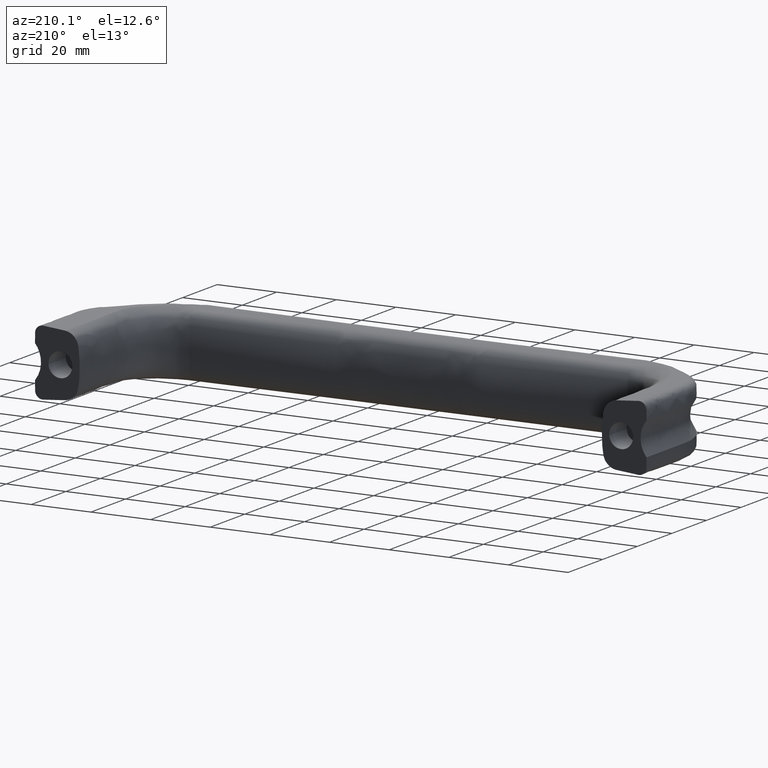
[diagram: clean part render]
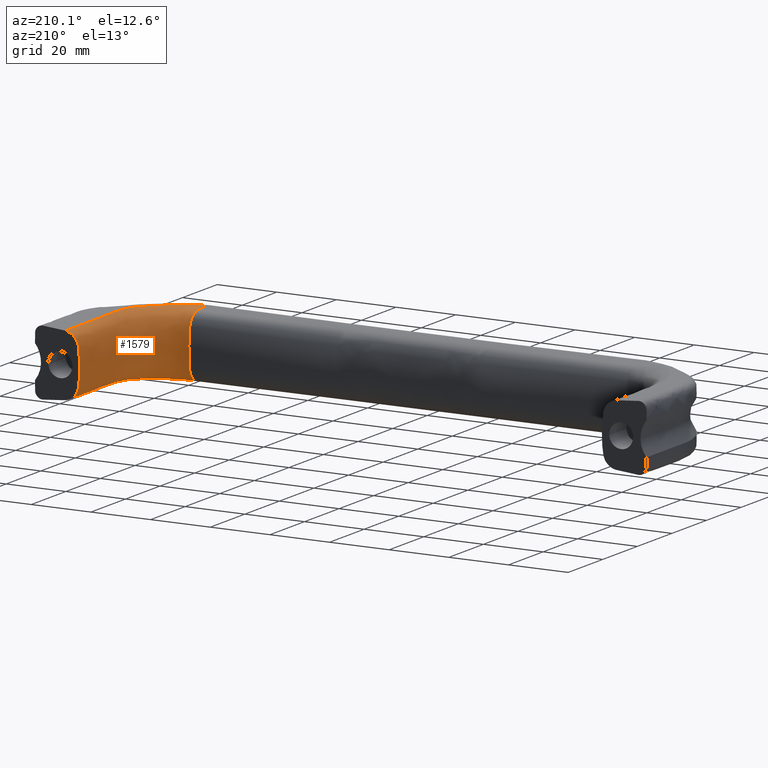
[diagram: same view with one face highlighted and labeled with its STEP entity id]
A machine part, auxiliary view. The second image highlights one B-rep face of the part: STEP entity #1579.
In plain terms, the highlighted face is a freeform B-spline surface patch.
Its self-contained STEP definition (entity closure, byte-faithful):
#846=CARTESIAN_POINT('',(72.299835684796108,2.508429898845060,-11.0));
#847=VERTEX_POINT('',#846);
#1008=CARTESIAN_POINT('',(98.737299259534794,50.000000000000703,-10.899077593641859));
#1009=VERTEX_POINT('',#1008);
#1027=CARTESIAN_POINT('',(98.737299259534794,50.000000000000703,-10.899077593641859));
#1028=CARTESIAN_POINT('',(98.737299259534694,42.666666666667403,-10.899077593641859));
#1029=CARTESIAN_POINT('',(98.737299259534794,35.333333333331993,-10.899077593641859));
#1030=CARTESIAN_POINT('',(98.737299259534794,27.999999999998700,-10.899077593641859));
#1031=CARTESIAN_POINT('',(98.737299259534410,21.103288754160051,-10.899077593641859));
#1032=CARTESIAN_POINT('',(96.025366524836301,14.424238631221000,-10.949782104332860));
#1033=CARTESIAN_POINT('',(91.011657774995598,9.636922482495381,-10.949782104332860));
#1034=CARTESIAN_POINT('',(86.046065967208094,4.895550568908179,-10.949782104332860));
#1035=CARTESIAN_POINT('',(79.316100290242701,2.212677621676260,-11.000243307512040));
#1036=CARTESIAN_POINT('',(72.366631053435100,2.505343412858650,-11.0));
#1037=CARTESIAN_POINT('',(72.299835684796108,2.508429898845060,-11.0));
#1038=B_SPLINE_CURVE_WITH_KNOTS('',3,(#1027,#1028,#1029,#1030,#1031,#1032,#1033,#1034,#1035,#1036,#1037),.UNSPECIFIED.,.F.,.U.,(4,3,3,1,4),(0.0,1.0,2.0,2.990402924371170,3.0),.UNSPECIFIED.);
#1039=EDGE_CURVE('',#1009,#847,#1038,.T.);
#1304=CARTESIAN_POINT('',(72.303397279750200,2.942482686218115,10.962028225916219));
#1305=VERTEX_POINT('',#1304);
#1306=CARTESIAN_POINT('',(72.303397279750200,2.942482686218115,10.962028225916219));
#1307=CARTESIAN_POINT('',(72.317238453318694,4.629311212552089,10.814461216595340));
#1308=CARTESIAN_POINT('',(72.331079626887103,6.316139738886080,10.666894207274479));
#1309=CARTESIAN_POINT('',(72.351933823767695,8.857647799454821,10.444558185676520));
#1310=CARTESIAN_POINT('',(72.358454519434702,9.652327196278991,10.155834251835561));
#1311=CARTESIAN_POINT('',(72.373336158070003,11.465957553882140,8.951692172804361));
#1312=CARTESIAN_POINT('',(72.379992221019009,12.277134207357520,7.745626123481340));
#1313=CARTESIAN_POINT('',(72.386152679929296,13.027911428217660,3.060623643819755));
#1314=CARTESIAN_POINT('',(72.387099946777809,13.143355160943880,-0.257073063755251));
#1315=CARTESIAN_POINT('',(72.384016593050987,12.767585794465560,-4.477565059403100));
#1316=CARTESIAN_POINT('',(72.383069363538112,12.652146611847220,-5.405459808217180));
#1317=CARTESIAN_POINT('',(72.379625422159990,12.232432305759520,-8.024598331859901));
#1318=CARTESIAN_POINT('',(72.370526837907803,11.123584751046600,-9.418795753945981));
#1319=CARTESIAN_POINT('',(72.354105576711305,9.122320068705710,-10.322745869198620));
#1320=CARTESIAN_POINT('',(72.349624204725217,8.576173741888821,-10.469101419360820));
#1321=CARTESIAN_POINT('',(72.329892852929902,6.171507193434350,-10.679498247326540));
#1322=CARTESIAN_POINT('',(72.314864268862991,4.339968546139710,-10.839749123663260));
#1323=CARTESIAN_POINT('',(72.299835684796108,2.508429898845060,-11.0));
#1324=B_SPLINE_CURVE_WITH_KNOTS('',3,(#1306,#1307,#1308,#1309,#1310,#1311,#1312,#1313,#1314,#1315,#1316,#1317,#1318,#1319,#1320,#1321,#1322,#1323),.UNSPECIFIED.,.F.,.U.,(4,2,2,2,2,2,2,2,4),(0.252235712501356,0.327227706813675,0.365224528523516,0.428738108484496,0.575354194704624,0.616796911402185,0.692826600959993,0.718306401209342,0.799731923832814),.UNSPECIFIED.);
#1325=EDGE_CURVE('',#1305,#847,#1324,.T.);
#1339=CARTESIAN_POINT('',(92.218183268673201,50.000000000000703,10.321889405628880));
#1340=CARTESIAN_POINT('',(90.776852321720696,50.000000000000703,10.119807627477440));
#1341=CARTESIAN_POINT('',(89.528638843517712,50.000000000000703,9.306269910722140));
#1342=CARTESIAN_POINT('',(88.359733228261391,50.000000000000703,7.552843139636750));
#1343=CARTESIAN_POINT('',(88.087919108882701,50.000000000000703,6.873273537382610));
#1344=CARTESIAN_POINT('',(87.782797872425903,50.000000000000703,4.908339916684020));
#1345=CARTESIAN_POINT('',(87.649592195593897,50.000000000000703,3.672229222396955));
#1346=CARTESIAN_POINT('',(87.399801641669399,50.000000000000703,-0.426086147032166));
#1347=CARTESIAN_POINT('',(87.533007318501291,50.000000000000703,-3.299727342748605));
#1348=CARTESIAN_POINT('',(88.098276823186396,50.000000000000703,-6.939975617202211));
#1349=CARTESIAN_POINT('',(88.410330551404996,50.000000000000703,-7.675642132235971));
#1350=CARTESIAN_POINT('',(89.692702354446197,50.000000000000703,-9.447364925571220));
#1351=CARTESIAN_POINT('',(90.995040886164389,50.000000000000703,-10.221717755883301));
#1352=CARTESIAN_POINT('',(92.975938928120598,50.000000000000703,-10.395023878155159));
#1353=CARTESIAN_POINT('',(93.473162256887804,50.000000000000703,-10.438525282662919));
#1354=CARTESIAN_POINT('',(95.559356810281585,50.000000000000703,-10.621043655994400));
#1355=CARTESIAN_POINT('',(97.148328034908204,50.000000000000703,-10.760060624818140));
#1356=CARTESIAN_POINT('',(98.737299259534794,50.000000000000703,-10.899077593641859));
#1357=CARTESIAN_POINT('',(92.218183268673201,42.666666666667403,10.321889405628880));
#1358=CARTESIAN_POINT('',(90.776852321720696,42.666666666667403,10.119807627477440));
#1359=CARTESIAN_POINT('',(89.528638843517712,42.666666666667403,9.306269910722140));
#1360=CARTESIAN_POINT('',(88.359733228261291,42.666666666667403,7.552843139636750));
#1361=CARTESIAN_POINT('',(88.087919108882701,42.666666666667403,6.873273537382610));
#1362=CARTESIAN_POINT('',(87.782797872425803,42.666666666667403,4.908339916684020));
#1363=CARTESIAN_POINT('',(87.649592195593897,42.666666666667403,3.672229222396955));
#1364=CARTESIAN_POINT('',(87.399801641669399,42.666666666667403,-0.426086147032166));
#1365=CARTESIAN_POINT('',(87.533007318501291,42.666666666667403,-3.299727342748605));
#1366=CARTESIAN_POINT('',(88.098276823186296,42.666666666667403,-6.939975617202211));
#1367=CARTESIAN_POINT('',(88.410330551404996,42.666666666667403,-7.675642132235971));
#1368=CARTESIAN_POINT('',(89.692702354446197,42.666666666667403,-9.447364925571220));
#1369=CARTESIAN_POINT('',(90.995040886164389,42.666666666667403,-10.221717755883301));
#1370=CARTESIAN_POINT('',(92.975938928120598,42.666666666667403,-10.395023878155159));
#1371=CARTESIAN_POINT('',(93.473162256887804,42.666666666667403,-10.438525282662919));
#1372=CARTESIAN_POINT('',(95.559356810281585,42.666666666667403,-10.621043655994400));
#1373=CARTESIAN_POINT('',(97.148328034908204,42.666666666667403,-10.760060624818140));
#1374=CARTESIAN_POINT('',(98.737299259534694,42.666666666667403,-10.899077593641859));
#1375=CARTESIAN_POINT('',(92.218183268673201,35.333333333332050,10.321889405628880));
#1376=CARTESIAN_POINT('',(90.776852321720696,35.333333333332050,10.119807627477440));
#1377=CARTESIAN_POINT('',(89.528638843517712,35.333333333332050,9.306269910722140));
#1378=CARTESIAN_POINT('',(88.359733228261291,35.333333333332050,7.552843139636750));
#1379=CARTESIAN_POINT('',(88.087919108882701,35.333333333332050,6.873273537382610));
#1380=CARTESIAN_POINT('',(87.782797872425803,35.333333333332050,4.908339916684020));
#1381=CARTESIAN_POINT('',(87.649592195593897,35.333333333332050,3.672229222396955));
#1382=CARTESIAN_POINT('',(87.399801641669399,35.333333333332050,-0.426086147032166));
#1383=CARTESIAN_POINT('',(87.533007318501291,35.333333333332050,-3.299727342748605));
#1384=CARTESIAN_POINT('',(88.098276823186396,35.333333333332050,-6.939975617202211));
#1385=CARTESIAN_POINT('',(88.410330551404996,35.333333333332050,-7.675642132235971));
#1386=CARTESIAN_POINT('',(89.692702354446197,35.333333333332050,-9.447364925571220));
#1387=CARTESIAN_POINT('',(90.995040886164389,35.333333333332050,-10.221717755883301));
#1388=CARTESIAN_POINT('',(92.975938928120598,35.333333333332050,-10.395023878155159));
#1389=CARTESIAN_POINT('',(93.473162256887804,35.333333333332050,-10.438525282662919));
#1390=CARTESIAN_POINT('',(95.559356810281585,35.333333333332050,-10.621043655994400));
#1391=CARTESIAN_POINT('',(97.148328034908204,35.333333333332050,-10.760060624818140));
#1392=CARTESIAN_POINT('',(98.737299259534794,35.333333333331993,-10.899077593641859));
#1393=CARTESIAN_POINT('',(92.218183268673201,27.999999999998700,10.321889405628880));
#1394=CARTESIAN_POINT('',(90.776852321720696,27.999999999998700,10.119807627477440));
#1395=CARTESIAN_POINT('',(89.528638843517712,27.999999999998700,9.306269910722140));
#1396=CARTESIAN_POINT('',(88.359733228261391,27.999999999998700,7.552843139636750));
#1397=CARTESIAN_POINT('',(88.087919108882701,27.999999999998700,6.873273537382610));
#1398=CARTESIAN_POINT('',(87.782797872425903,27.999999999998700,4.908339916684020));
#1399=CARTESIAN_POINT('',(87.649592195593897,27.999999999998700,3.672229222396955));
#1400=CARTESIAN_POINT('',(87.399801641669399,27.999999999998700,-0.426086147032166));
#1401=CARTESIAN_POINT('',(87.533007318501291,27.999999999998700,-3.299727342748605));
#1402=CARTESIAN_POINT('',(88.098276823186396,27.999999999998700,-6.939975617202211));
#1403=CARTESIAN_POINT('',(88.410330551404996,27.999999999998700,-7.675642132235971));
#1404=CARTESIAN_POINT('',(89.692702354446197,27.999999999998700,-9.447364925571220));
#1405=CARTESIAN_POINT('',(90.995040886164389,27.999999999998700,-10.221717755883301));
#1406=CARTESIAN_POINT('',(92.975938928120598,27.999999999998700,-10.395023878155159));
#1407=CARTESIAN_POINT('',(93.473162256887804,27.999999999998700,-10.438525282662919));
#1408=CARTESIAN_POINT('',(95.559356810281585,27.999999999998700,-10.621043655994400));
#1409=CARTESIAN_POINT('',(97.148328034908204,27.999999999998700,-10.760060624818140));
#1410=CARTESIAN_POINT('',(98.737299259534794,27.999999999998700,-10.899077593641859));
#1411=CARTESIAN_POINT('',(92.218183268672803,22.880770596163451,10.321889405628880));
#1412=CARTESIAN_POINT('',(90.776852321720312,23.273759398650899,10.119807627477440));
#1413=CARTESIAN_POINT('',(89.528638843517300,23.614093394174201,9.306269910722140));
#1414=CARTESIAN_POINT('',(88.359733228261007,23.932803555037498,7.552843139636750));
#1415=CARTESIAN_POINT('',(88.087919108882389,24.006915545416700,6.873273537382610));
#1416=CARTESIAN_POINT('',(87.782797872425505,24.090108950499850,4.908339916684020));
#1417=CARTESIAN_POINT('',(87.649592195593513,24.126428395061399,3.672229222396955));
#1418=CARTESIAN_POINT('',(87.399801641669001,24.194535508744799,-0.426086147032166));
#1419=CARTESIAN_POINT('',(87.533007318500893,24.158216064183250,-3.299727342748605));
#1420=CARTESIAN_POINT('',(88.098276823185998,24.004091443326001,-6.939975617202211));
#1421=CARTESIAN_POINT('',(88.410330551404599,23.919007846651901,-7.675642132235971));
#1422=CARTESIAN_POINT('',(89.692702354445785,23.569360348770552,-9.447364925571220));
#1423=CARTESIAN_POINT('',(90.995040886164006,23.214268784896650,-10.221717755883301));
#1424=CARTESIAN_POINT('',(92.975938928120200,22.674163300445549,-10.395023878155159));
#1425=CARTESIAN_POINT('',(93.473162256887406,22.538591937772601,-10.438525282662919));
#1426=CARTESIAN_POINT('',(95.559356810281201,21.969776634786449,-10.621043655994400));
#1427=CARTESIAN_POINT('',(97.148328034907806,21.536532694473252,-10.760060624818140));
#1428=CARTESIAN_POINT('',(98.737299259534410,21.103288754160051,-10.899077593641859));
#1429=CARTESIAN_POINT('',(92.946980937275796,16.267702470286149,10.643502086382741));
#1430=CARTESIAN_POINT('',(91.541043709808704,17.075621317747999,10.468809118890221));
#1431=CARTESIAN_POINT('',(90.220435878041599,17.832166497675850,9.989862302942019));
#1432=CARTESIAN_POINT('',(88.545193266838496,18.782694795810549,9.005672117444529));
#1433=CARTESIAN_POINT('',(88.062770515925493,19.054985314045052,8.522467614752660));
#1434=CARTESIAN_POINT('',(87.101056931454607,19.592556156123301,6.939763909591260));
#1435=CARTESIAN_POINT('',(86.672356984152103,19.832125204157901,5.718747970540020));
#1436=CARTESIAN_POINT('',(86.219681874392009,20.087508930228001,1.325674638766260));
#1437=CARTESIAN_POINT('',(86.225904427853393,20.081124683502448,-1.771064858515860));
#1438=CARTESIAN_POINT('',(86.646995942954305,19.836187377262249,-5.702833866831710));
#1439=CARTESIAN_POINT('',(86.837510202466902,19.724123574400899,-6.535077929771280));
#1440=CARTESIAN_POINT('',(87.595490985586096,19.277361859788950,-8.732551569797629));
#1441=CARTESIAN_POINT('',(88.676493135245309,18.651867575329099,-9.818321040521770));
#1442=CARTESIAN_POINT('',(90.464201336124901,17.621283405099749,-10.358710623149600));
#1443=CARTESIAN_POINT('',(90.932907078149086,17.351572433673901,-10.453887065105819));
#1444=CARTESIAN_POINT('',(92.951065259768498,16.191460561286849,-10.650411876175561));
#1445=CARTESIAN_POINT('',(94.488215892302392,15.307849596253950,-10.800096990254200));
#1446=CARTESIAN_POINT('',(96.025366524836301,14.424238631221000,-10.949782104332860));
#1447=CARTESIAN_POINT('',(88.614140948313292,12.134085784999920,10.643502086382741));
#1448=CARTESIAN_POINT('',(87.510532561934809,13.242911054470561,10.468809118890221));
#1449=CARTESIAN_POINT('',(86.473310881629388,14.282261864097199,9.989862302942019));
#1450=CARTESIAN_POINT('',(85.155225183870101,15.592175299305049,9.005672117444529));
#1451=CARTESIAN_POINT('',(84.775289416305299,15.968057919432001,8.522467614752660));
#1452=CARTESIAN_POINT('',(84.016553962481794,16.712503204908099,6.939763909591260));
#1453=CARTESIAN_POINT('',(83.678319142026794,17.044294304603500,5.718747970540020));
#1454=CARTESIAN_POINT('',(83.321781783127605,17.396890395406398,1.325674638766260));
#1455=CARTESIAN_POINT('',(83.325953495291301,17.389368702648099,-1.771064858515860));
#1456=CARTESIAN_POINT('',(83.655743959439391,17.054511756611500,-5.702833866831710));
#1457=CARTESIAN_POINT('',(83.804634467135784,16.901851932104300,-6.535077929771280));
#1458=CARTESIAN_POINT('',(84.396781343801393,16.293637296184048,-8.732551569797629));
#1459=CARTESIAN_POINT('',(85.244236826643387,15.437078441808650,-9.818321040521770));
#1460=CARTESIAN_POINT('',(86.646688419167404,14.024106192659641,-10.358710623149600));
#1461=CARTESIAN_POINT('',(87.014511023124001,13.654105856766639,-10.453887065105819));
#1462=CARTESIAN_POINT('',(88.598593234258914,12.062083067242980,-10.650411876175561));
#1463=CARTESIAN_POINT('',(89.805125504627298,10.849502774869180,-10.800096990254200));
#1464=CARTESIAN_POINT('',(91.011657774995598,9.636922482495381,-10.949782104332860));
#1465=CARTESIAN_POINT('',(84.322883552412605,8.040139731662970,10.643502086382741));
#1466=CARTESIAN_POINT('',(83.518702534369794,9.446983601453210,10.468809118890221));
#1467=CARTESIAN_POINT('',(82.762147327198406,10.766425933762120,9.989862302942019));
#1468=CARTESIAN_POINT('',(81.797790880973210,12.432275459702799,9.005672117444529));
#1469=CARTESIAN_POINT('',(81.519358521426398,12.910756000485780,8.522467614752660));
#1470=CARTESIAN_POINT('',(80.961653201779484,13.860090339680740,6.939763909591260));
#1471=CARTESIAN_POINT('',(80.713015307507888,14.283218429032519,5.718747970540020));
#1472=CARTESIAN_POINT('',(80.451693058204000,14.732093930151819,1.325674638766260));
#1473=CARTESIAN_POINT('',(80.453833611148895,14.723445707516341,-1.771064858515860));
#1474=CARTESIAN_POINT('',(80.693199247435189,14.299532087267000,-5.702833866831710));
#1475=CARTESIAN_POINT('',(80.800865469609505,14.106665844203899,-6.535077929771280));
#1476=CARTESIAN_POINT('',(81.228769960363508,13.338547762871659,-8.732551569797629));
#1477=CARTESIAN_POINT('',(81.844920141412800,12.253141882733340,-9.818321040521770));
#1478=CARTESIAN_POINT('',(82.865812462387908,10.461451361977639,-10.358710623149600));
#1479=CARTESIAN_POINT('',(83.133720111382601,9.992124146233030,-10.453887065105819));
#1480=CARTESIAN_POINT('',(84.287892211950506,7.972335521309431,-10.650411876175561));
#1481=CARTESIAN_POINT('',(85.166979089579300,6.433943045108810,-10.800096990254200));
#1482=CARTESIAN_POINT('',(86.046065967208094,4.895550568908179,-10.949782104332860));
#1483=CARTESIAN_POINT('',(79.199279551866994,2.634037471697075,10.963571496526500));
#1484=CARTESIAN_POINT('',(78.716738034812394,4.323931343407695,10.816135913449200));
#1485=CARTESIAN_POINT('',(78.233965768990117,6.014248678713139,10.670174451218200));
#1486=CARTESIAN_POINT('',(77.505732792762387,8.562573962925370,10.451529640464461));
#1487=CARTESIAN_POINT('',(77.277916783457201,9.359590389475091,10.163747971979159));
#1488=CARTESIAN_POINT('',(76.757614707911003,11.179245556222959,8.961440037651480));
#1489=CARTESIAN_POINT('',(76.524896960393093,11.993124066078220,7.755446421082221));
#1490=CARTESIAN_POINT('',(76.309658306239498,12.746124572257321,3.069029534192245));
#1491=CARTESIAN_POINT('',(76.276356942741998,12.862286483057000,-0.249737719019181));
#1492=CARTESIAN_POINT('',(76.383559392762209,12.486369711192660,-4.471628587932180));
#1493=CARTESIAN_POINT('',(76.416327426349199,12.371188721994820,-5.399986767761880));
#1494=CARTESIAN_POINT('',(76.535288985018795,11.952737261122000,-8.021168272942031));
#1495=CARTESIAN_POINT('',(76.852066726090101,10.842652833672140,-9.416860039553171));
#1496=CARTESIAN_POINT('',(77.424233539585600,8.838345413753951,-10.322571618671340));
#1497=CARTESIAN_POINT('',(77.580430019761806,8.291273632403451,-10.469175133454700));
#1498=CARTESIAN_POINT('',(78.268281772659904,5.882306334727860,-10.679639171841560));
#1499=CARTESIAN_POINT('',(78.792191031451097,4.047491978202090,-10.839941239676900));
#1500=CARTESIAN_POINT('',(79.316100290242701,2.212677621676260,-11.000243307512040));
#1501=CARTESIAN_POINT('',(72.369056858675108,2.939405519888280,10.962028225916219));
#1502=CARTESIAN_POINT('',(72.378484093327913,4.626270264541851,10.814461216595340));
#1503=CARTESIAN_POINT('',(72.387911327980603,6.313135009195420,10.666894207274479));
#1504=CARTESIAN_POINT('',(72.402115138554606,8.854697639123010,10.444558185676520));
#1505=CARTESIAN_POINT('',(72.406556389713501,9.649394098708399,10.155834251835561));
#1506=CARTESIAN_POINT('',(72.416692285975387,11.463063397225159,8.951692172804361));
#1507=CARTESIAN_POINT('',(72.421225735900890,12.274257467678501,7.745626123481340));
#1508=CARTESIAN_POINT('',(72.425421629509898,13.025050808665180,3.060623643819755));
#1509=CARTESIAN_POINT('',(72.426066813736085,13.140497020112839,-0.257073063755251));
#1510=CARTESIAN_POINT('',(72.423966738987701,12.764719585395920,-4.477565059403100));
#1511=CARTESIAN_POINT('',(72.423321580190702,12.649277924153839,-5.405459808217180));
#1512=CARTESIAN_POINT('',(72.420975908897603,12.229554606274720,-8.024598331859901));
#1513=CARTESIAN_POINT('',(72.414778855712200,11.120683243217020,-9.418795753945981));
#1514=CARTESIAN_POINT('',(72.403594321263000,9.119375591218759,-10.322745869198620));
#1515=CARTESIAN_POINT('',(72.400542055133300,8.573217537956710,-10.469101419360820));
#1516=CARTESIAN_POINT('',(72.387103015266490,6.168499358301931,-10.679498247326540));
#1517=CARTESIAN_POINT('',(72.376867034350795,4.336921385580295,-10.839749123663260));
#1518=CARTESIAN_POINT('',(72.366631053435100,2.505343412858650,-11.0));
#1519=CARTESIAN_POINT('',(72.303397279750200,2.942482686218115,10.962028225916219));
#1520=CARTESIAN_POINT('',(72.317238453318694,4.629311212552089,10.814461216595340));
#1521=CARTESIAN_POINT('',(72.331079626887103,6.316139738886080,10.666894207274479));
#1522=CARTESIAN_POINT('',(72.351933823767695,8.857647799454821,10.444558185676520));
#1523=CARTESIAN_POINT('',(72.358454519434702,9.652327196278991,10.155834251835561));
#1524=CARTESIAN_POINT('',(72.373336158070003,11.465957553882140,8.951692172804361));
#1525=CARTESIAN_POINT('',(72.379992221019009,12.277134207357520,7.745626123481340));
#1526=CARTESIAN_POINT('',(72.386152679929296,13.027911428217660,3.060623643819755));
#1527=CARTESIAN_POINT('',(72.387099946777809,13.143355160943880,-0.257073063755251));
#1528=CARTESIAN_POINT('',(72.384016593050987,12.767585794465560,-4.477565059403100));
#1529=CARTESIAN_POINT('',(72.383069363538112,12.652146611847220,-5.405459808217180));
#1530=CARTESIAN_POINT('',(72.379625422159990,12.232432305759520,-8.024598331859901));
#1531=CARTESIAN_POINT('',(72.370526837907803,11.123584751046600,-9.418795753945981));
#1532=CARTESIAN_POINT('',(72.354105576711305,9.122320068705710,-10.322745869198620));
#1533=CARTESIAN_POINT('',(72.349624204725217,8.576173741888821,-10.469101419360820));
#1534=CARTESIAN_POINT('',(72.329892852929902,6.171507193434350,-10.679498247326540));
#1535=CARTESIAN_POINT('',(72.314864268862991,4.339968546139710,-10.839749123663260));
#1536=CARTESIAN_POINT('',(72.299835684796108,2.508429898845060,-11.0));
#1537=B_SPLINE_SURFACE_WITH_KNOTS('',3,3,((#1339,#1357,#1375,#1393,#1411,#1429,#1447,#1465,#1483,#1501,#1519),(#1340,#1358,#1376,#1394,#1412,#1430,#1448,#1466,#1484,#1502,#1520),(#1341,#1359,#1377,#1395,#1413,#1431,#1449,#1467,#1485,#1503,#1521),(#1342,#1360,#1378,#1396,#1414,#1432,#1450,#1468,#1486,#1504,#1522),(#1343,#1361,#1379,#1397,#1415,#1433,#1451,#1469,#1487,#1505,#1523),(#1344,#1362,#1380,#1398,#1416,#1434,#1452,#1470,#1488,#1506,#1524),(#1345,#1363,#1381,#1399,#1417,#1435,#1453,#1471,#1489,#1507,#1525),(#1346,#1364,#1382,#1400,#1418,#1436,#1454,#1472,#1490,#1508,#1526),(#1347,#1365,#1383,#1401,#1419,#1437,#1455,#1473,#1491,#1509,#1527),(#1348,#1366,#1384,#1402,#1420,#1438,#1456,#1474,#1492,#1510,#1528),(#1349,#1367,#1385,#1403,#1421,#1439,#1457,#1475,#1493,#1511,#1529),(#1350,#1368,#1386,#1404,#1422,#1440,#1458,#1476,#1494,#1512,#1530),(#1351,#1369,#1387,#1405,#1423,#1441,#1459,#1477,#1495,#1513,#1531),(#1352,#1370,#1388,#1406,#1424,#1442,#1460,#1478,#1496,#1514,#1532),(#1353,#1371,#1389,#1407,#1425,#1443,#1461,#1479,#1497,#1515,#1533),(#1354,#1372,#1390,#1408,#1426,#1444,#1462,#1480,#1498,#1516,#1534),(#1355,#1373,#1391,#1409,#1427,#1445,#1463,#1481,#1499,#1517,#1535),(#1356,#1374,#1392,#1410,#1428,#1446,#1464,#1482,#1500,#1518,#1536)),.UNSPECIFIED.,.F.,.F.,.U.,(4,2,2,2,2,2,2,2,4),(4,3,3,1,4),(0.0,5.079993362398561,7.653916137066363,11.956356251943321,21.888199666017691,24.695549006089710,29.845836337966169,31.571850125556178,37.087653755666103),(0.0,22.000000000002760,44.000000000005507,65.788864336173987,66.000000000008271),.UNSPECIFIED.);
#1538=CARTESIAN_POINT('',(92.218183268673201,50.000000000000703,10.321889405628880));
#1539=VERTEX_POINT('',#1538);
#1540=CARTESIAN_POINT('',(92.218183268673201,50.000000000000703,10.321889405628880));
#1541=CARTESIAN_POINT('',(90.776852321720696,50.000000000000703,10.119807627477440));
#1542=CARTESIAN_POINT('',(89.528638843517712,50.000000000000703,9.306269910722140));
#1543=CARTESIAN_POINT('',(88.359733228261391,50.000000000000703,7.552843139636750));
#1544=CARTESIAN_POINT('',(88.087919108882701,50.000000000000703,6.873273537382610));
#1545=CARTESIAN_POINT('',(87.782797872425903,50.000000000000703,4.908339916684020));
#1546=CARTESIAN_POINT('',(87.649592195593897,50.000000000000703,3.672229222396955));
#1547=CARTESIAN_POINT('',(87.399801641669399,50.000000000000703,-0.426086147032166));
#1548=CARTESIAN_POINT('',(87.533007318501291,50.000000000000703,-3.299727342748605));
#1549=CARTESIAN_POINT('',(88.098276823186396,50.000000000000703,-6.939975617202211));
#1550=CARTESIAN_POINT('',(88.410330551404996,50.000000000000703,-7.675642132235971));
#1551=CARTESIAN_POINT('',(89.692702354446197,50.000000000000703,-9.447364925571220));
#1552=CARTESIAN_POINT('',(90.995040886164389,50.000000000000703,-10.221717755883301));
#1553=CARTESIAN_POINT('',(92.975938928120598,50.000000000000703,-10.395023878155159));
#1554=CARTESIAN_POINT('',(93.473162256887804,50.000000000000703,-10.438525282662919));
#1555=CARTESIAN_POINT('',(95.559356810281585,50.000000000000703,-10.621043655994400));
#1556=CARTESIAN_POINT('',(97.148328034908204,50.000000000000703,-10.760060624818140));
#1557=CARTESIAN_POINT('',(98.737299259534794,50.000000000000703,-10.899077593641859));
#1558=B_SPLINE_CURVE_WITH_KNOTS('',3,(#1540,#1541,#1542,#1543,#1544,#1545,#1546,#1547,#1548,#1549,#1550,#1551,#1552,#1553,#1554,#1555,#1556,#1557),.UNSPECIFIED.,.F.,.U.,(4,2,2,2,2,2,2,2,4),(0.252235712501356,0.327227706813675,0.365224528523516,0.428738108484496,0.575354194704624,0.616796911402185,0.692826600959993,0.718306401209342,0.799731923832814),.UNSPECIFIED.);
#1559=EDGE_CURVE('',#1539,#1009,#1558,.T.);
#1560=ORIENTED_EDGE('',*,*,#1559,.T.);
#1561=ORIENTED_EDGE('',*,*,#1039,.T.);
#1562=ORIENTED_EDGE('',*,*,#1325,.F.);
#1563=CARTESIAN_POINT('',(92.218183268673201,50.000000000000703,10.321889405628880));
#1564=CARTESIAN_POINT('',(92.218183268673201,42.666666666667403,10.321889405628880));
#1565=CARTESIAN_POINT('',(92.218183268673201,35.333333333332050,10.321889405628880));
#1566=CARTESIAN_POINT('',(92.218183268673201,27.999999999998700,10.321889405628880));
#1567=CARTESIAN_POINT('',(92.218183268672803,22.880770596163451,10.321889405628880));
#1568=CARTESIAN_POINT('',(92.946980937275796,16.267702470286149,10.643502086382741));
#1569=CARTESIAN_POINT('',(88.614140948313292,12.134085784999920,10.643502086382741));
#1570=CARTESIAN_POINT('',(84.322883552412605,8.040139731662970,10.643502086382741));
#1571=CARTESIAN_POINT('',(79.199279551866994,2.634037471697075,10.963571496526500));
#1572=CARTESIAN_POINT('',(72.369056858675108,2.939405519888280,10.962028225916219));
#1573=CARTESIAN_POINT('',(72.303397279750200,2.942482686218115,10.962028225916219));
#1574=B_SPLINE_CURVE_WITH_KNOTS('',3,(#1563,#1564,#1565,#1566,#1567,#1568,#1569,#1570,#1571,#1572,#1573),.UNSPECIFIED.,.F.,.U.,(4,3,3,1,4),(0.0,1.0,2.0,2.990402924371170,3.0),.UNSPECIFIED.);
#1575=EDGE_CURVE('',#1539,#1305,#1574,.T.);
#1576=ORIENTED_EDGE('',*,*,#1575,.F.);
#1577=EDGE_LOOP('',(#1560,#1561,#1562,#1576));
#1578=FACE_OUTER_BOUND('',#1577,.T.);
#1579=ADVANCED_FACE('',(#1578),#1537,.T.);